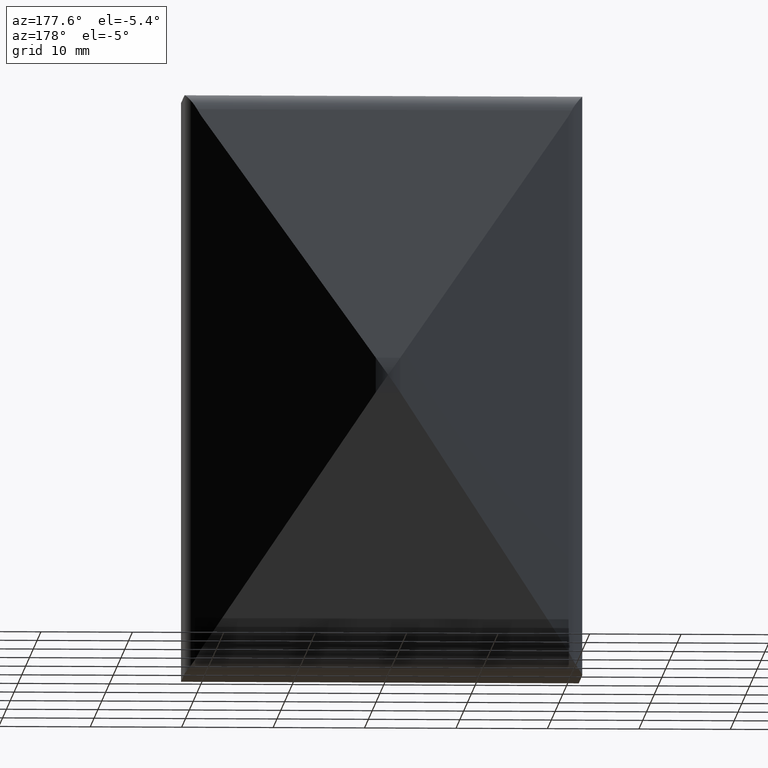
[diagram: clean part render]
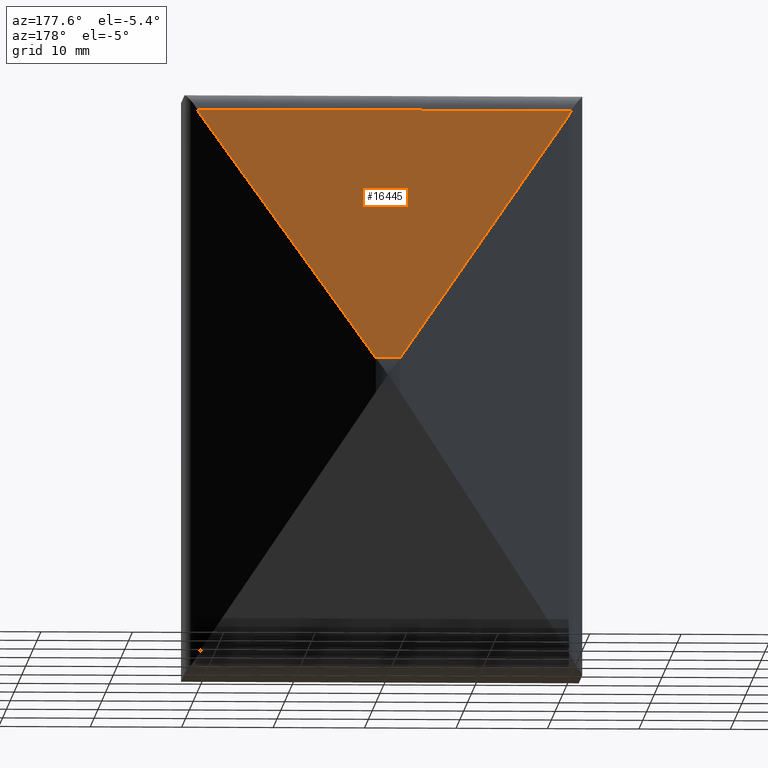
[diagram: same view with one face highlighted and labeled with its STEP entity id]
A machine part, auxiliary view. The second image highlights one B-rep face of the part: STEP entity #16445.
In plain terms, the highlighted planar face has unit normal (0, -0.9464, -0.3229).
Its self-contained STEP definition (entity closure, byte-faithful):
#716 = CARTESIAN_POINT ( 'NONE',  ( -20.35171063749208642, 11.68523939744726547, 29.74174999506665884 ) ) ;
#1119 = CARTESIAN_POINT ( 'NONE',  ( 20.22325426734645504, 11.76180957234796942, 29.51734367124052838 ) ) ;
#1225 = EDGE_CURVE ( 'NONE', #1848, #9053, #10943, .T. ) ;
#1234 = CARTESIAN_POINT ( 'NONE',  ( 20.08944142353320217, 11.82857897811069670, 29.32166073188835398 ) ) ;
#1848 = VERTEX_POINT ( 'NONE', #4581 ) ;
#2377 = LINE ( 'NONE', #6654, #11395 ) ;
#3665 =( BOUNDED_CURVE ( )  B_SPLINE_CURVE ( 3, ( #1234, #1119, #3788, #5169 ),
 .UNSPECIFIED., .F., .F. ) 
 B_SPLINE_CURVE_WITH_KNOTS ( ( 4, 4 ),
 ( 0.4628281226151096384, 0.6122350729910341904 ),
 .UNSPECIFIED. ) 
 CURVE ( )  GEOMETRIC_REPRESENTATION_ITEM ( )  RATIONAL_B_SPLINE_CURVE ( ( 1.000000000000000000, 0.9981406618595697333, 0.9981406618595697333, 1.000000000000000000 ) ) 
 REPRESENTATION_ITEM ( '' )  );
#3683 = CARTESIAN_POINT ( 'NONE',  ( -21.13774599634805185, 11.30550009128223365, 30.85466245503359417 ) ) ;
#3788 = CARTESIAN_POINT ( 'NONE',  ( 20.35171063749202602, 11.68523939744729212, 29.74174999506673700 ) ) ;
#3887 =( BOUNDED_CURVE ( )  B_SPLINE_CURVE ( 3, ( #8539, #716, #9956, #9844 ),
 .UNSPECIFIED., .F., .T. ) 
 B_SPLINE_CURVE_WITH_KNOTS ( ( 4, 4 ),
 ( 5.670950234188515182, 5.820357184564478814 ),
 .UNSPECIFIED. ) 
 CURVE ( )  GEOMETRIC_REPRESENTATION_ITEM ( )  RATIONAL_B_SPLINE_CURVE ( ( 1.000000000000000000, 0.9981406618595687341, 0.9981406618595687341, 1.000000000000000000 ) ) 
 REPRESENTATION_ITEM ( '' )  );
#4254 = ORIENTED_EDGE ( 'NONE', *, *, #13241, .F. ) ;
#4579 = EDGE_CURVE ( 'NONE', #5819, #7607, #9873, .T. ) ;
#4581 = CARTESIAN_POINT ( 'NONE',  ( -20.08944142353318085, 11.82857897811070025, 29.32166073188818700 ) ) ;
#5100 = EDGE_CURVE ( 'NONE', #7607, #9906, #3665, .T. ) ;
#5169 = CARTESIAN_POINT ( 'NONE',  ( 20.47409400248474398, 11.59929556294849462, 29.99362796165649314 ) ) ;
#5511 = CARTESIAN_POINT ( 'NONE',  ( -21.75000000000000355, 11.59929556294843778, 29.99362796165649314 ) ) ;
#5649 = CARTESIAN_POINT ( 'NONE',  ( 20.08944142353320217, 11.82857897811069670, 29.32166073188835398 ) ) ;
#5819 = VERTEX_POINT ( 'NONE', #11512 ) ;
#6034 = FACE_OUTER_BOUND ( 'NONE', #9669, .T. ) ;
#6197 = AXIS2_PLACEMENT_3D ( 'NONE', #12253, #9679, #13549 ) ;
#6276 = ORIENTED_EDGE ( 'NONE', *, *, #4579, .F. ) ;
#6654 = CARTESIAN_POINT ( 'NONE',  ( -21.75000000000001421, 21.18438012824622874, 1.902356214504865362 ) ) ;
#6668 = VECTOR ( 'NONE', #15844, 1000.000000000000000 ) ;
#7461 = DIRECTION ( 'NONE',  ( 0.5433272377133839814, 0.2711072850932722544, -0.7945415991174401560 ) ) ;
#7492 = VECTOR ( 'NONE', #7461, 1000.000000000000114 ) ;
#7607 = VERTEX_POINT ( 'NONE', #5649 ) ;
#7809 = ORIENTED_EDGE ( 'NONE', *, *, #16308, .T. ) ;
#8286 = ORIENTED_EDGE ( 'NONE', *, *, #11981, .F. ) ;
#8539 = CARTESIAN_POINT ( 'NONE',  ( -20.47409400248482214, 11.59929556294843778, 29.99362796165649314 ) ) ;
#9053 = VERTEX_POINT ( 'NONE', #14411 ) ;
#9669 = EDGE_LOOP ( 'NONE', ( #6276, #4254, #12296, #8286, #7809, #11389 ) ) ;
#9679 = DIRECTION ( 'NONE',  ( 1.296164662629373279E-15, -0.9464225400524034493, -0.3229309147182362616 ) ) ;
#9718 = CARTESIAN_POINT ( 'NONE',  ( -20.47409400248482214, 11.59929556294843778, 29.99362796165649314 ) ) ;
#9844 = CARTESIAN_POINT ( 'NONE',  ( -20.08944142353318085, 11.82857897811070025, 29.32166073188818700 ) ) ;
#9873 = LINE ( 'NONE', #10237, #12937 ) ;
#9906 = VERTEX_POINT ( 'NONE', #15490 ) ;
#9956 = CARTESIAN_POINT ( 'NONE',  ( -20.22325426734646925, 11.76180957234796409, 29.51734367124037561 ) ) ;
#10109 = LINE ( 'NONE', #5511, #6668 ) ;
#10237 = CARTESIAN_POINT ( 'NONE',  ( 14.22455260999991111, 14.75501809848787005, 20.74506487381553299 ) ) ;
#10943 = LINE ( 'NONE', #3683, #7492 ) ;
#11389 = ORIENTED_EDGE ( 'NONE', *, *, #5100, .F. ) ;
#11395 = VECTOR ( 'NONE', #12010, 1000.000000000000000 ) ;
#11512 = CARTESIAN_POINT ( 'NONE',  ( 1.339441423533212161, 21.18438012824626071, 1.902356214504865362 ) ) ;
#11554 = DIRECTION ( 'NONE',  ( 0.5433272377133817610, -0.2711072850932714773, 0.7945415991174419323 ) ) ;
#11981 = EDGE_CURVE ( 'NONE', #14461, #1848, #3887, .T. ) ;
#12010 = DIRECTION ( 'NONE',  ( 1.000000000000000000, 1.369541201499284725E-15, -0.000000000000000000 ) ) ;
#12253 = CARTESIAN_POINT ( 'NONE',  ( -21.75000000000001066, 19.55659568357993194, 6.672948990123906299 ) ) ;
#12296 = ORIENTED_EDGE ( 'NONE', *, *, #1225, .F. ) ;
#12937 = VECTOR ( 'NONE', #11554, 1000.000000000000227 ) ;
#13241 = EDGE_CURVE ( 'NONE', #9053, #5819, #2377, .T. ) ;
#13549 = DIRECTION ( 'NONE',  ( 0.000000000000000000, 0.3229309147182362616, -0.9464225400524034493 ) ) ;
#13662 = PLANE ( 'NONE',  #6197 ) ;
#14411 = CARTESIAN_POINT ( 'NONE',  ( -1.339441423533200171, 21.18438012824625361, 1.902356214504872689 ) ) ;
#14461 = VERTEX_POINT ( 'NONE', #9718 ) ;
#15490 = CARTESIAN_POINT ( 'NONE',  ( 20.47409400248474398, 11.59929556294849462, 29.99362796165649314 ) ) ;
#15844 = DIRECTION ( 'NONE',  ( 1.000000000000000000, 1.369541201499284725E-15, -0.000000000000000000 ) ) ;
#16308 = EDGE_CURVE ( 'NONE', #14461, #9906, #10109, .T. ) ;
#16445 = ADVANCED_FACE ( 'NONE', ( #6034 ), #13662, .F. ) ;